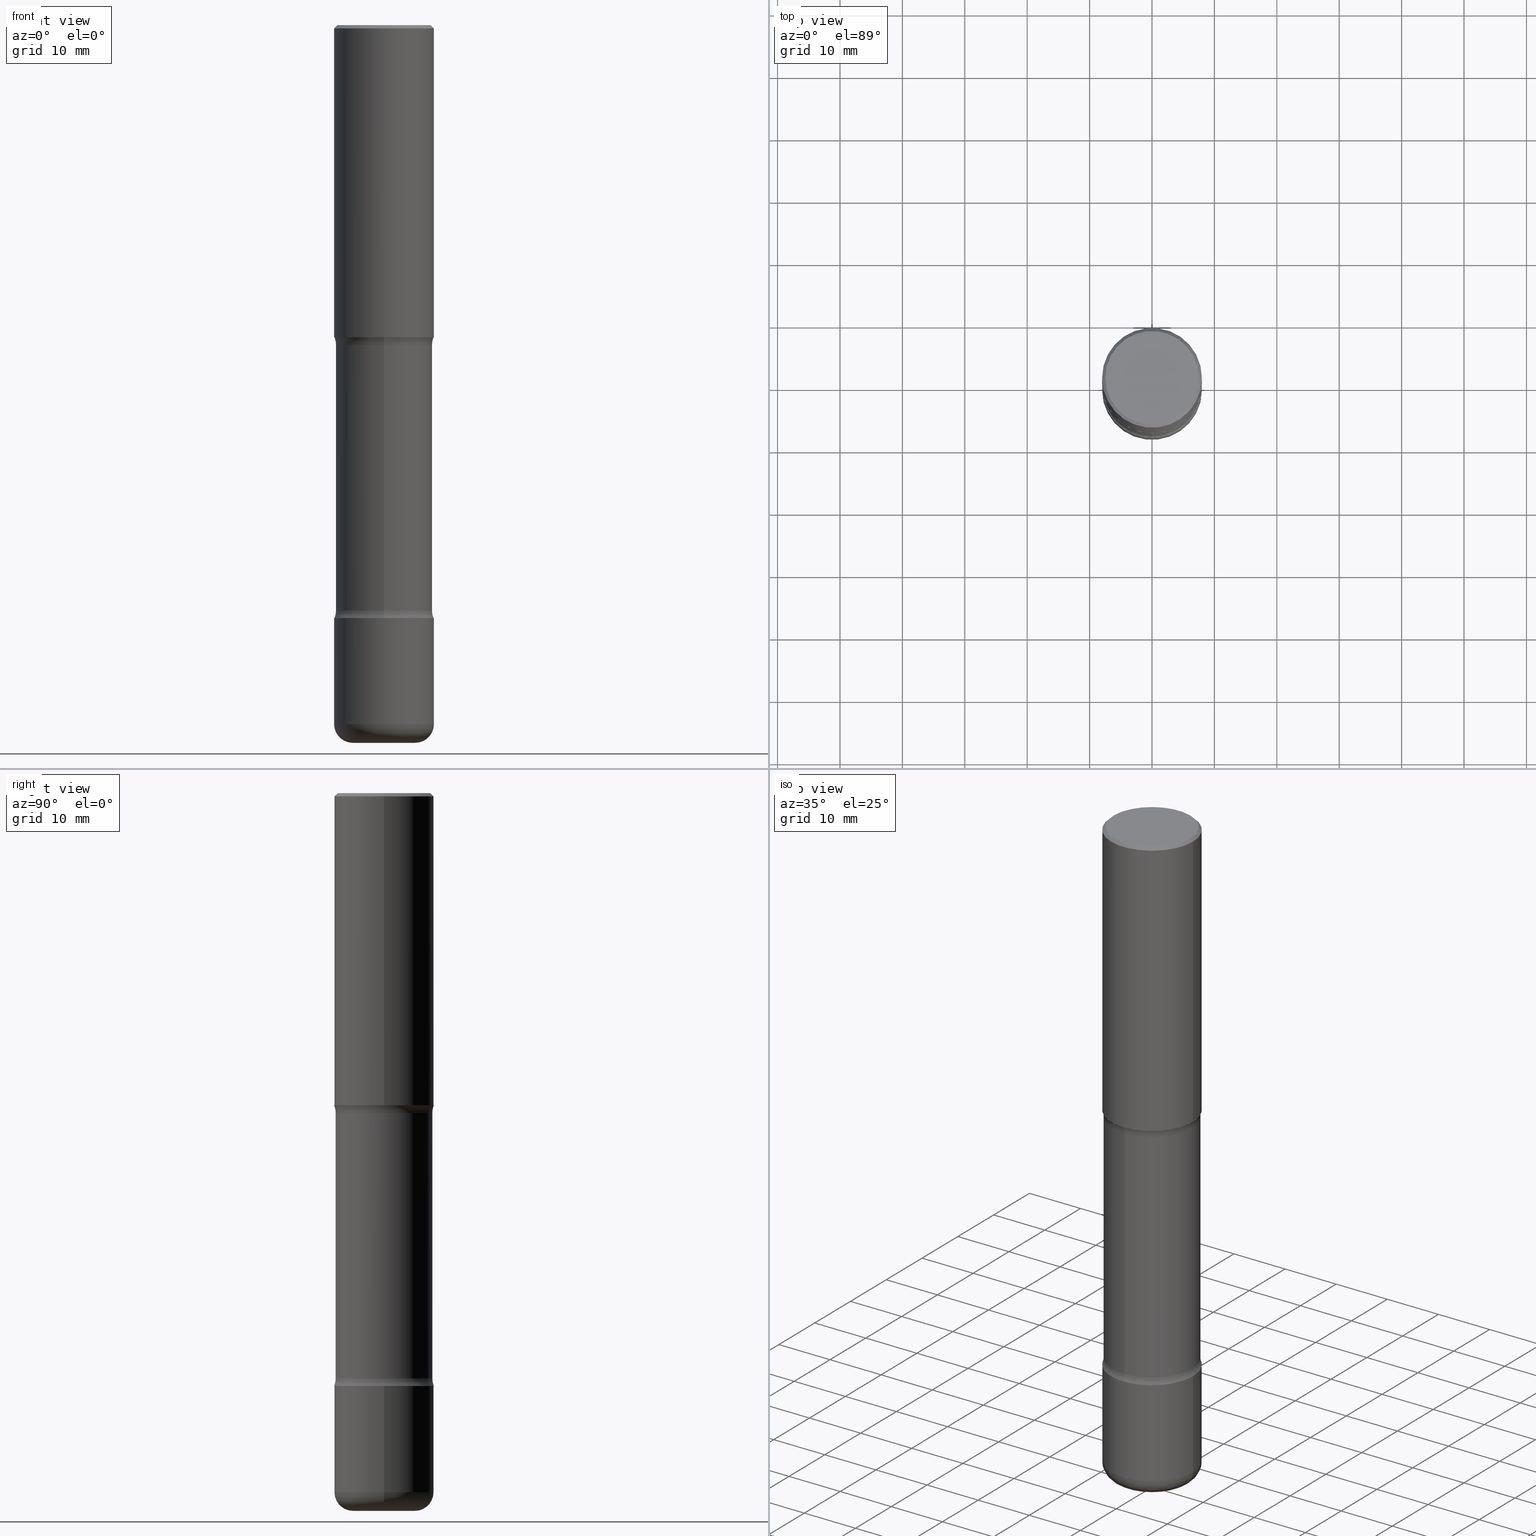
[diagram: canonical four-view strip — front | top / right | iso, engineering-drawing reading convention]
A machine part, canonical four-view strip (front | top / right | iso — engineering-drawing reading convention). The complete STEP part file that produces these views, byte-faithful:
ISO-10303-21;
HEADER;
FILE_DESCRIPTION (( 'STEP AP203' ),
    '1' );
FILE_NAME ('46935.STEP',
    '2024-03-02T06:00:58',
    ( '' ),
    ( '' ),
    'SwSTEP 2.0',
    'SolidWorks 2023',
    '' );
FILE_SCHEMA (( 'CONFIG_CONTROL_DESIGN' ));
ENDSEC;

DATA;
#1 = CARTESIAN_POINT ( 'NONE',  ( 0.3149500000000002298, -1.525812259887842581E-14, -3.740200000000000191 ) ) ;
#2 = AXIS2_PLACEMENT_3D ( 'NONE', #122, #382, #514 ) ;
#3 = CC_DESIGN_PERSON_AND_ORGANIZATION_ASSIGNMENT ( #269, #499, ( #534 ) ) ;
#4 = DIRECTION ( 'NONE',  ( -2.445468806185136597E-29, 3.491481338843145583E-15, 1.000000000000000000 ) ) ;
#5 = EDGE_CURVE ( 'NONE', #66, #101, #411, .T. ) ;
#6 = ORIENTED_EDGE ( 'NONE', *, *, #550, .T. ) ;
#7 = DIRECTION ( 'NONE',  ( 0.7071067811865459074, -7.319954787623249734E-15, -0.7071067811865491270 ) ) ;
#8 = EDGE_LOOP ( 'NONE', ( #62, #140, #338, #59 ) ) ;
#9 = DIRECTION ( 'NONE',  ( 1.000000000000000000, -6.982962677686267499E-15, 4.876053491004736589E-29 ) ) ;
#10 = CIRCLE ( 'NONE', #274, 0.3149500000000001743 ) ;
#11 = ORIENTED_EDGE ( 'NONE', *, *, #270, .T. ) ;
#12 = DIRECTION ( 'NONE',  ( 6.982962677686266711E-15, 1.000000000000000000, -3.582751467100674095E-15 ) ) ;
#13 = VERTEX_POINT ( 'NONE', #163 ) ;
#14 = ORIENTED_EDGE ( 'NONE', *, *, #455, .T. ) ;
#15 = LINE ( 'NONE', #444, #512 ) ;
#16 = DIRECTION ( 'NONE',  ( 6.982962677686265922E-15, 1.000000000000000000, -3.397830769241806549E-15 ) ) ;
#17 = ORIENTED_EDGE ( 'NONE', *, *, #273, .F. ) ;
#18 = PERSON_AND_ORGANIZATION_ROLE ( 'classification_officer' ) ;
#19 = VERTEX_POINT ( 'NONE', #82 ) ;
#20 = DIRECTION ( 'NONE',  ( -2.445468806185136597E-29, 3.491481338843145583E-15, 1.000000000000000000 ) ) ;
#21 = AXIS2_PLACEMENT_3D ( 'NONE', #548, #400, #118 ) ;
#22 = AXIS2_PLACEMENT_3D ( 'NONE', #166, #497, #372 ) ;
#23 = DATE_TIME_ROLE ( 'creation_date' ) ;
#24 = CARTESIAN_POINT ( 'NONE',  ( 0.1968500000000002470, -1.718262711284877024E-14, -4.527600000000000513 ) ) ;
#25 = PERSON_AND_ORGANIZATION ( #171, #403 ) ;
#26 = CARTESIAN_POINT ( 'NONE',  ( 4.698043529530127941E-29, -7.038901729675425288E-15, -1.968500000000000139 ) ) ;
#27 = APPLICATION_PROTOCOL_DEFINITION ( 'international standard', 'config_control_design', 1994, #30 ) ;
#28 = ORIENTED_EDGE ( 'NONE', *, *, #198, .T. ) ;
#29 = CARTESIAN_POINT ( 'NONE',  ( 1.107210456688382522E-28, -1.580803090974622705E-14, -4.527600000000000513 ) ) ;
#30 = APPLICATION_CONTEXT ( 'configuration controlled 3d designs of mechanical parts and assemblies' ) ;
#31 = MANIFOLD_SOLID_BREP ( 'Body-Move/Copy2[2]', #439 ) ;
#32 = EDGE_CURVE ( 'NONE', #134, #265, #332, .T. ) ;
#33 =( GEOMETRIC_REPRESENTATION_CONTEXT ( 3 ) GLOBAL_UNCERTAINTY_ASSIGNED_CONTEXT ( ( #459 ) ) GLOBAL_UNIT_ASSIGNED_CONTEXT ( ( #454, #457, #148 ) ) REPRESENTATION_CONTEXT ( 'NONE', 'WORKASPACE' ) );
#34 = DIRECTION ( 'NONE',  ( -2.445468806185136597E-29, 3.491481338843145583E-15, 1.000000000000000000 ) ) ;
#35 = DIRECTION ( 'NONE',  ( 2.438088387897960049E-29, -3.491481338843145188E-15, -1.000000000000000000 ) ) ;
#36 = ADVANCED_FACE ( 'NONE', ( #374 ), #460, .F. ) ;
#37 = DIRECTION ( 'NONE',  ( 2.510864649412157880E-29, -3.397830769241806549E-15, -1.000000000000000000 ) ) ;
#38 = CIRCLE ( 'NONE', #56, 0.3049999999999999378 ) ;
#39 = AXIS2_PLACEMENT_3D ( 'NONE', #116, #329, #42 ) ;
#40 = LINE ( 'NONE', #220, #173 ) ;
#41 = DIRECTION ( 'NONE',  ( 6.982962677686266711E-15, 1.000000000000000000, -3.582751467100673306E-15 ) ) ;
#42 = DIRECTION ( 'NONE',  ( -1.000000000000000000, 6.982962677686265922E-15, -4.876176775795935793E-29 ) ) ;
#43 = CARTESIAN_POINT ( 'NONE',  ( 4.820755151858623476E-29, -7.204961388123744804E-15, -2.017372256956273979 ) ) ;
#44 = COORDINATED_UNIVERSAL_TIME_OFFSET ( 5, 0, .BEHIND. ) ;
#45 = ORIENTED_EDGE ( 'NONE', *, *, #375, .F. ) ;
#46 = CARTESIAN_POINT ( 'NONE',  ( 4.838038961945526264E-29, -7.180209988345923531E-15, -2.017372256956273979 ) ) ;
#47 = EDGE_CURVE ( 'NONE', #221, #186, #192, .T. ) ;
#48 = EDGE_LOOP ( 'NONE', ( #28, #437, #440, #100 ) ) ;
#49 = AXIS2_PLACEMENT_3D ( 'NONE', #170, #472, #89 ) ;
#50 = AXIS2_PLACEMENT_3D ( 'NONE', #239, #491, #412 ) ;
#51 = ORIENTED_EDGE ( 'NONE', *, *, #325, .T. ) ;
#52 = CARTESIAN_POINT ( 'NONE',  ( 9.146542428893648262E-29, -1.305883850354113437E-14, -3.740200000000000191 ) ) ;
#53 = VERTEX_POINT ( 'NONE', #295 ) ;
#54 = DIRECTION ( 'NONE',  ( 1.000000000000000000, -6.860497997771530774E-15, 4.841945768327149582E-29 ) ) ;
#55 = CLOSED_SHELL ( 'NONE', ( #321, #537, #467, #288, #424, #532 ) ) ;
#56 = AXIS2_PLACEMENT_3D ( 'NONE', #87, #426, #423 ) ;
#57 = CIRCLE ( 'NONE', #335, 0.1181000000000000383 ) ;
#58 = PLANE ( 'NONE',  #513 ) ;
#59 = ORIENTED_EDGE ( 'NONE', *, *, #135, .T. ) ;
#60 = ORIENTED_EDGE ( 'NONE', *, *, #198, .F. ) ;
#61 = FACE_OUTER_BOUND ( 'NONE', #480, .T. ) ;
#62 = ORIENTED_EDGE ( 'NONE', *, *, #431, .F. ) ;
#63 = VERTEX_POINT ( 'NONE', #214 ) ;
#64 = EDGE_CURVE ( 'NONE', #53, #175, #322, .T. ) ;
#65 = PERSON_AND_ORGANIZATION_ROLE ( 'design_owner' ) ;
#66 = VERTEX_POINT ( 'NONE', #324 ) ;
#67 = CYLINDRICAL_SURFACE ( 'NONE', #234, 0.3149500000000000077 ) ;
#68 = CC_DESIGN_DATE_AND_TIME_ASSIGNMENT ( #363, #23, ( #302 ) ) ;
#69 = DATE_TIME_ROLE ( 'classification_date' ) ;
#70 = AXIS2_PLACEMENT_3D ( 'NONE', #26, #451, #158 ) ;
#71 = CC_DESIGN_APPROVAL ( #177, ( #302 ) ) ;
#72 = CARTESIAN_POINT ( 'NONE',  ( 4.890937612370289799E-31, -6.982962677686315028E-17, -0.02000000000000006981 ) ) ;
#73 = CARTESIAN_POINT ( 'NONE',  ( 0.3149500000000002853, -2.199284095337291843E-15, 1.535751875536931531E-29 ) ) ;
#74 = ADVANCED_FACE ( 'NONE', ( #378 ), #370, .T. ) ;
#75 = PERSON_AND_ORGANIZATION ( #171, #403 ) ;
#76 = CARTESIAN_POINT ( 'NONE',  ( 9.027026849019217051E-29, -1.288820193039115935E-14, -3.691327743043726795 ) ) ;
#77 = EDGE_CURVE ( 'NONE', #518, #13, #331, .T. ) ;
#78 = CIRCLE ( 'NONE', #258, 0.1968500000000002470 ) ;
#79 = CC_DESIGN_APPROVAL ( #154, ( #354 ) ) ;
#80 = EDGE_CURVE ( 'NONE', #396, #530, #296, .T. ) ;
#81 = ORIENTED_EDGE ( 'NONE', *, *, #458, .F. ) ;
#82 = CARTESIAN_POINT ( 'NONE',  ( 2.199284095337382168E-15, 0.3149499999999871291, -3.740200000000001079 ) ) ;
#83 = ADVANCED_FACE ( 'NONE', ( #252 ), #120, .F. ) ;
#84 = CARTESIAN_POINT ( 'NONE',  ( 3.002673951405142333E-15, 0.4299999999999927769, -2.017372256956275756 ) ) ;
#85 = CARTESIAN_POINT ( 'NONE',  ( -0.1968500000000002470, -1.378358007587744270E-14, -4.527600000000000513 ) ) ;
#86 = AXIS2_PLACEMENT_3D ( 'NONE', #52, #345, #219 ) ;
#87 = CARTESIAN_POINT ( 'NONE',  ( 9.023830806565153848E-29, -1.289277884509281722E-14, -3.691327743043726795 ) ) ;
#88 = DIRECTION ( 'NONE',  ( -1.000000000000000000, 6.982962677686265922E-15, -4.883557194083112901E-29 ) ) ;
#89 = DIRECTION ( 'NONE',  ( 1.000000000000000000, -6.982962677686263555E-15, 0.000000000000000000 ) ) ;
#90 = ADVANCED_FACE ( 'NONE', ( #247 ), #474, .F. ) ;
#91 = CARTESIAN_POINT ( 'NONE',  ( 0.000000000000000000, 0.000000000000000000, 0.000000000000000000 ) ) ;
#92 = DIRECTION ( 'NONE',  ( -2.445468806185136597E-29, 3.491481338843145583E-15, 1.000000000000000000 ) ) ;
#93 = AXIS2_PLACEMENT_3D ( 'NONE', #283, #37, #207 ) ;
#94 = FACE_OUTER_BOUND ( 'NONE', #123, .T. ) ;
#95 = ORIENTED_EDGE ( 'NONE', *, *, #135, .F. ) ;
#96 = CARTESIAN_POINT ( 'NONE',  ( 4.890937612370289799E-31, -6.982962677686315028E-17, -0.02000000000000006981 ) ) ;
#97 = EDGE_LOOP ( 'NONE', ( #356, #232 ) ) ;
#98 = ORIENTED_EDGE ( 'NONE', *, *, #77, .T. ) ;
#99 = CYLINDRICAL_SURFACE ( 'NONE', #125, 0.3149500000000002853 ) ;
#100 = ORIENTED_EDGE ( 'NONE', *, *, #446, .F. ) ;
#101 = VERTEX_POINT ( 'NONE', #124 ) ;
#102 = CARTESIAN_POINT ( 'NONE',  ( 4.813905344975441835E-29, -6.872981015512731707E-15, -1.968500000000000139 ) ) ;
#103 = AXIS2_PLACEMENT_3D ( 'NONE', #167, #129, #174 ) ;
#104 = ORIENTED_EDGE ( 'NONE', *, *, #517, .F. ) ;
#105 = AXIS2_PLACEMENT_3D ( 'NONE', #96, #475, #432 ) ;
#106 = AXIS2_PLACEMENT_3D ( 'NONE', #557, #316, #463 ) ;
#107 = ORIENTED_EDGE ( 'NONE', *, *, #336, .F. ) ;
#108 = FACE_OUTER_BOUND ( 'NONE', #536, .T. ) ;
#109 = CALENDAR_DATE ( 2024, 2, 3 ) ;
#110 = PLANE ( 'NONE',  #172 ) ;
#111 = CARTESIAN_POINT ( 'NONE',  ( 0.3149500000000001743, -9.072265110850023156E-15, -1.968500000000000139 ) ) ;
#112 = CIRCLE ( 'NONE', #86, 0.3149500000000002298 ) ;
#113 = ORIENTED_EDGE ( 'NONE', *, *, #446, .T. ) ;
#114 = FACE_OUTER_BOUND ( 'NONE', #189, .T. ) ;
#115 = SECURITY_CLASSIFICATION_LEVEL ( 'unclassified' ) ;
#116 = CARTESIAN_POINT ( 'NONE',  ( 9.146542428893648262E-29, -1.305883850354113437E-14, -3.740200000000000191 ) ) ;
#117 = CARTESIAN_POINT ( 'NONE',  ( -0.3149500000000002298, -1.198940838730855529E-14, -3.740200000000000191 ) ) ;
#118 = DIRECTION ( 'NONE',  ( 6.982962677686264344E-15, 1.000000000000000000, -3.469564049740290403E-15 ) ) ;
#119 = PLANE ( 'NONE',  #275 ) ;
#120 = TOROIDAL_SURFACE ( 'NONE', #93, 0.4299999999999999378, 0.1249999999999999861 ) ;
#121 = TOROIDAL_SURFACE ( 'NONE', #259, 0.1968500000000002470, 0.1181000000000000383 ) ;
#122 = CARTESIAN_POINT ( 'NONE',  ( -3.131554243005663153E-46, 4.471029511141347348E-32, 1.280553747030124924E-17 ) ) ;
#123 = EDGE_LOOP ( 'NONE', ( #305, #6, #399, #81 ) ) ;
#124 = CARTESIAN_POINT ( 'NONE',  ( -0.3149500000000002853, -1.315783261735241693E-14, -4.409500000000000419 ) ) ;
#125 = AXIS2_PLACEMENT_3D ( 'NONE', #188, #4, #128 ) ;
#126 = APPROVAL_PERSON_ORGANIZATION ( #236, #177, #359 ) ;
#127 = DIRECTION ( 'NONE',  ( 2.510864649412157600E-29, -3.397830769241806549E-15, -1.000000000000000000 ) ) ;
#128 = DIRECTION ( 'NONE',  ( 1.000000000000000000, -6.982962677686267499E-15, 4.876176775795936353E-29 ) ) ;
#129 = DIRECTION ( 'NONE',  ( -2.445468806185136597E-29, 3.491481338843145583E-15, 1.000000000000000000 ) ) ;
#130 = CC_DESIGN_PERSON_AND_ORGANIZATION_ASSIGNMENT ( #25, #65, ( #326 ) ) ;
#131 = ADVANCED_FACE ( 'NONE', ( #290 ), #164, .F. ) ;
#132 = TOROIDAL_SURFACE ( 'NONE', #419, 0.1968500000000002470, 0.1181000000000000383 ) ;
#133 = DIRECTION ( 'NONE',  ( 2.510864649412157880E-29, -3.397830769241806549E-15, -1.000000000000000000 ) ) ;
#134 = VERTEX_POINT ( 'NONE', #85 ) ;
#135 = EDGE_CURVE ( 'NONE', #63, #13, #38, .T. ) ;
#136 = CARTESIAN_POINT ( 'NONE',  ( -0.2949499999999998789, 2.094539655171994924E-15, 1.280553747028672311E-17 ) ) ;
#137 = VERTEX_POINT ( 'NONE', #421 ) ;
#138 = ORIENTED_EDGE ( 'NONE', *, *, #244, .T. ) ;
#139 = DIRECTION ( 'NONE',  ( -2.445468806185136597E-29, 3.491481338843145583E-15, 1.000000000000000000 ) ) ;
#140 = ORIENTED_EDGE ( 'NONE', *, *, #230, .F. ) ;
#141 = DIRECTION ( 'NONE',  ( 2.510864649412157600E-29, -3.397830769241806549E-15, -1.000000000000000000 ) ) ;
#142 = CIRCLE ( 'NONE', #241, 0.3049999999999999933 ) ;
#143 = EDGE_CURVE ( 'NONE', #518, #493, #142, .T. ) ;
#144 = VERTEX_POINT ( 'NONE', #1 ) ;
#145 = ORIENTED_EDGE ( 'NONE', *, *, #458, .T. ) ;
#146 = CARTESIAN_POINT ( 'NONE',  ( 0.2949499999999998789, -2.127023677808859286E-15, 1.280553747031588939E-17 ) ) ;
#147 = FACE_OUTER_BOUND ( 'NONE', #521, .T. ) ;
#148 =( NAMED_UNIT ( * ) SI_UNIT ( $, .STERADIAN. ) SOLID_ANGLE_UNIT ( ) );
#149 = DIRECTION ( 'NONE',  ( 1.000000000000000000, -6.982962677686266711E-15, 4.876176775795936353E-29 ) ) ;
#150 = COORDINATED_UNIVERSAL_TIME_OFFSET ( 5, 0, .BEHIND. ) ;
#151 = DIRECTION ( 'NONE',  ( -2.445468806185136597E-29, 3.491481338843145583E-15, 1.000000000000000000 ) ) ;
#152 = AXIS2_PLACEMENT_3D ( 'NONE', #348, #54, #340 ) ;
#153 = LOCAL_TIME ( 1, 0, 58.00000000000000000, #44 ) ;
#154 = APPROVAL ( #404, 'UNSPECIFIED' ) ;
#155 = DATE_AND_TIME ( #547, #249 ) ;
#156 = ORIENTED_EDGE ( 'NONE', *, *, #298, .F. ) ;
#157 = EDGE_CURVE ( 'NONE', #101, #66, #342, .T. ) ;
#158 = DIRECTION ( 'NONE',  ( 6.982962677686265922E-15, 1.000000000000000000, -3.469564049740289220E-15 ) ) ;
#159 = CALENDAR_DATE ( 2024, 2, 3 ) ;
#160 = DIRECTION ( 'NONE',  ( -2.445468806185136597E-29, 3.491481338843145583E-15, 1.000000000000000000 ) ) ;
#161 = CYLINDRICAL_SURFACE ( 'NONE', #523, 0.3149500000000000077 ) ;
#162 = ADVANCED_FACE ( 'NONE', ( #108 ), #110, .F. ) ;
#163 = CARTESIAN_POINT ( 'NONE',  ( -2.126582866859139470E-15, -0.3050000000000128719, -3.691327743043725906 ) ) ;
#164 = PLANE ( 'NONE',  #505 ) ;
#165 = EDGE_LOOP ( 'NONE', ( #492, #98, #95, #516 ) ) ;
#166 = CARTESIAN_POINT ( 'NONE',  ( 4.820755151858623476E-29, -7.204961388123744804E-15, -2.017372256956273979 ) ) ;
#167 = CARTESIAN_POINT ( 'NONE',  ( 1.107210456688382522E-28, -1.580803090974622705E-14, -4.527600000000000513 ) ) ;
#168 = ADVANCED_FACE ( 'NONE', ( #147 ), #476, .T. ) ;
#169 = CARTESIAN_POINT ( 'NONE',  ( 9.146542428893648262E-29, -1.305883850354113437E-14, -3.740200000000000191 ) ) ;
#170 = CARTESIAN_POINT ( 'NONE',  ( 1.078329470087336022E-28, -1.539568696362885450E-14, -4.409500000000000419 ) ) ;
#171 = PERSON ( 'UNSPECIFIED', 'UNSPECIFIED', 'UNSPECIFIED', ('UNSPECIFIED'), ('UNSPECIFIED'), ('UNSPECIFIED') ) ;
#172 = AXIS2_PLACEMENT_3D ( 'NONE', #414, #368, #277 ) ;
#173 = VECTOR ( 'NONE', #183, 39.37007874015748143 ) ;
#174 = DIRECTION ( 'NONE',  ( 1.000000000000000000, -6.982962677686269866E-15, 0.000000000000000000 ) ) ;
#175 = VERTEX_POINT ( 'NONE', #205 ) ;
#176 = CARTESIAN_POINT ( 'NONE',  ( -0.3149499999999998967, 2.129454468560425784E-15, -0.02000000000000006981 ) ) ;
#177 = APPROVAL ( #204, 'UNSPECIFIED' ) ;
#178 = ADVANCED_FACE ( 'NONE', ( #553 ), #67, .T. ) ;
#179 = ORIENTED_EDGE ( 'NONE', *, *, #362, .T. ) ;
#180 = TOROIDAL_SURFACE ( 'NONE', #466, 0.4300000000000000488, 0.1249999999999999861 ) ;
#181 = CIRCLE ( 'NONE', #524, 0.1249999999999999584 ) ;
#182 = DIRECTION ( 'NONE',  ( -2.445468806185136597E-29, 3.491481338843145583E-15, 1.000000000000000000 ) ) ;
#183 = DIRECTION ( 'NONE',  ( -2.445468806185136877E-29, 3.491481338843145188E-15, 1.000000000000000000 ) ) ;
#184 = EDGE_LOOP ( 'NONE', ( #401, #398, #14, #527 ) ) ;
#185 = CARTESIAN_POINT ( 'NONE',  ( -2.950014139041668531E-15, -0.4300000000000129829, -3.691327743043725018 ) ) ;
#186 = VERTEX_POINT ( 'NONE', #272 ) ;
#187 = ORIENTED_EDGE ( 'NONE', *, *, #32, .T. ) ;
#188 = CARTESIAN_POINT ( 'NONE',  ( 0.000000000000000000, 0.000000000000000000, 0.000000000000000000 ) ) ;
#189 = EDGE_LOOP ( 'NONE', ( #251, #212 ) ) ;
#190 = COORDINATED_UNIVERSAL_TIME_OFFSET ( 5, 0, .BEHIND. ) ;
#191 = ORIENTED_EDGE ( 'NONE', *, *, #157, .F. ) ;
#192 = CIRCLE ( 'NONE', #280, 0.3149500000000001743 ) ;
#193 = VECTOR ( 'NONE', #141, 39.37007874015748143 ) ;
#194 = DIRECTION ( 'NONE',  ( 1.000000000000000000, -6.982962677686266711E-15, 4.876176775795936353E-29 ) ) ;
#195 = MECHANICAL_CONTEXT ( 'NONE', #479, 'mechanical' ) ;
#196 = DIRECTION ( 'NONE',  ( -2.445468806185136877E-29, 3.491481338843145188E-15, 1.000000000000000000 ) ) ;
#197 = DIRECTION ( 'NONE',  ( -6.982962677686265922E-15, -1.000000000000000000, 3.397830769241806549E-15 ) ) ;
#198 = EDGE_CURVE ( 'NONE', #265, #134, #78, .T. ) ;
#199 =( LENGTH_UNIT ( ) NAMED_UNIT ( * ) SI_UNIT ( $, .METRE. ) );
#200 = PLANE ( 'NONE',  #39 ) ;
#201 = CARTESIAN_POINT ( 'NONE',  ( 0.000000000000000000, 0.000000000000000000, 0.000000000000000000 ) ) ;
#202 = AXIS2_PLACEMENT_3D ( 'NONE', #526, #267, #256 ) ;
#203 = AXIS2_PLACEMENT_3D ( 'NONE', #227, #133, #12 ) ;
#204 = APPROVAL_STATUS ( 'not_yet_approved' ) ;
#205 = CARTESIAN_POINT ( 'NONE',  ( -2.160713844398098792E-15, -0.3149500000000073907, -1.968499999999999028 ) ) ;
#206 = DIRECTION ( 'NONE',  ( 6.982962677686265922E-15, 1.000000000000000000, -3.469564049740289220E-15 ) ) ;
#207 = DIRECTION ( 'NONE',  ( 6.982962677686265922E-15, 1.000000000000000000, -3.397830769241806549E-15 ) ) ;
#208 = TOROIDAL_SURFACE ( 'NONE', #468, 0.4300000000000000488, 0.1249999999999999861 ) ;
#209 = ORIENTED_EDGE ( 'NONE', *, *, #528, .T. ) ;
#210 = ADVANCED_FACE ( 'NONE', ( #407 ), #180, .F. ) ;
#211 = CARTESIAN_POINT ( 'NONE',  ( 4.813905344975441835E-29, -6.872981015512731707E-15, -1.968500000000000139 ) ) ;
#212 = ORIENTED_EDGE ( 'NONE', *, *, #336, .T. ) ;
#213 = ORIENTED_EDGE ( 'NONE', *, *, #375, .T. ) ;
#214 = CARTESIAN_POINT ( 'NONE',  ( 2.129803616694401198E-15, 0.3049999999999870592, -3.691327743043728127 ) ) ;
#215 = MANIFOLD_SOLID_BREP ( 'Body-Move/Copy2[1]', #55 ) ;
#216 = CONICAL_SURFACE ( 'NONE', #105, 0.3149499999999998967, 0.7853981633974460586 ) ;
#217 = AXIS2_PLACEMENT_3D ( 'NONE', #279, #88, #309 ) ;
#218 = DIRECTION ( 'NONE',  ( 6.860497997771532351E-15, 1.000000000000000000, 0.000000000000000000 ) ) ;
#219 = DIRECTION ( 'NONE',  ( 1.000000000000000000, -6.982962677686264344E-15, 0.000000000000000000 ) ) ;
#220 = CARTESIAN_POINT ( 'NONE',  ( -0.3149500000000000077, 2.237854346276435590E-15, -1.549218606675782676E-29 ) ) ;
#221 = VERTEX_POINT ( 'NONE', #111 ) ;
#222 = DIRECTION ( 'NONE',  ( -2.510864649412157319E-29, 3.397830769241806549E-15, 1.000000000000000000 ) ) ;
#223 = CIRCLE ( 'NONE', #306, 0.2949499999999998789 ) ;
#224 = DIRECTION ( 'NONE',  ( -2.445468806185136597E-29, 3.491481338843145583E-15, 1.000000000000000000 ) ) ;
#225 = ORIENTED_EDGE ( 'NONE', *, *, #504, .F. ) ;
#226 = ORIENTED_EDGE ( 'NONE', *, *, #386, .T. ) ;
#227 = CARTESIAN_POINT ( 'NONE',  ( 1.112359725384078225E-28, -1.573429045124212958E-14, -4.527600000000000513 ) ) ;
#228 = DIRECTION ( 'NONE',  ( 2.510864649412157880E-29, -3.397830769241806549E-15, -1.000000000000000000 ) ) ;
#229 = ORIENTED_EDGE ( 'NONE', *, *, #304, .F. ) ;
#230 = EDGE_CURVE ( 'NONE', #19, #137, #248, .T. ) ;
#231 = APPROVAL_STATUS ( 'not_yet_approved' ) ;
#232 = ORIENTED_EDGE ( 'NONE', *, *, #273, .T. ) ;
#233 = PERSON_AND_ORGANIZATION ( #171, #403 ) ;
#234 = AXIS2_PLACEMENT_3D ( 'NONE', #201, #20, #194 ) ;
#235 = LINE ( 'NONE', #405, #487 ) ;
#236 = PERSON_AND_ORGANIZATION ( #171, #403 ) ;
#237 = DIRECTION ( 'NONE',  ( -1.000000000000000000, 6.982962677686265922E-15, -4.876176775795935793E-29 ) ) ;
#238 = DIRECTION ( 'NONE',  ( 2.445468806185136597E-29, -3.491481338843145583E-15, -1.000000000000000000 ) ) ;
#239 = CARTESIAN_POINT ( 'NONE',  ( 0.000000000000000000, 0.000000000000000000, 0.000000000000000000 ) ) ;
#240 = FACE_OUTER_BOUND ( 'NONE', #450, .T. ) ;
#241 = AXIS2_PLACEMENT_3D ( 'NONE', #43, #380, #41 ) ;
#242 = CC_DESIGN_SECURITY_CLASSIFICATION ( #354, ( #534 ) ) ;
#243 = ADVANCED_BREP_SHAPE_REPRESENTATION ( '46935', ( #215, #31, #395, #50 ), #33 ) ;
#244 = EDGE_CURVE ( 'NONE', #175, #53, #364, .T. ) ;
#245 = CARTESIAN_POINT ( 'NONE',  ( 2.129803616694359388E-15, 0.3049999999999927769, -2.017372256956274867 ) ) ;
#246 = CARTESIAN_POINT ( 'NONE',  ( -2.092451889320205392E-15, -0.3050000000000157030, -4.527599999999998737 ) ) ;
#247 = FACE_OUTER_BOUND ( 'NONE', #533, .T. ) ;
#248 = CIRCLE ( 'NONE', #21, 0.3149500000000002298 ) ;
#249 = LOCAL_TIME ( 1, 0, 58.00000000000000000, #318 ) ;
#250 = APPROVAL_DATE_TIME ( #470, #154 ) ;
#251 = ORIENTED_EDGE ( 'NONE', *, *, #416, .T. ) ;
#252 = FACE_OUTER_BOUND ( 'NONE', #482, .T. ) ;
#253 = CARTESIAN_POINT ( 'NONE',  ( 1.078329470087336022E-28, -1.539568696362885450E-14, -4.409500000000000419 ) ) ;
#254 = ADVANCED_FACE ( 'NONE', ( #544 ), #161, .T. ) ;
#255 = ORIENTED_EDGE ( 'NONE', *, *, #47, .T. ) ;
#256 = DIRECTION ( 'NONE',  ( 1.000000000000000000, -6.982962677686265922E-15, 0.000000000000000000 ) ) ;
#257 = DIRECTION ( 'NONE',  ( 1.000000000000000000, -6.982962677686263555E-15, 0.000000000000000000 ) ) ;
#258 = AXIS2_PLACEMENT_3D ( 'NONE', #29, #34, #311 ) ;
#259 = AXIS2_PLACEMENT_3D ( 'NONE', #551, #160, #319 ) ;
#260 = DIRECTION ( 'NONE',  ( 1.000000000000000000, -6.982962677686265922E-15, 0.000000000000000000 ) ) ;
#261 = ORIENTED_EDGE ( 'NONE', *, *, #64, .T. ) ;
#262 = CYLINDRICAL_SURFACE ( 'NONE', #420, 0.3149500000000002853 ) ;
#263 = ORIENTED_EDGE ( 'NONE', *, *, #517, .T. ) ;
#264 = CIRCLE ( 'NONE', #371, 0.3149500000000002298 ) ;
#265 = VERTEX_POINT ( 'NONE', #24 ) ;
#266 = APPROVAL_PERSON_ORGANIZATION ( #271, #389, #496 ) ;
#267 = DIRECTION ( 'NONE',  ( -2.445468806185136597E-29, 3.491481338843145583E-15, 1.000000000000000000 ) ) ;
#268 = ORIENTED_EDGE ( 'NONE', *, *, #80, .T. ) ;
#269 = PERSON_AND_ORGANIZATION ( #171, #403 ) ;
#270 = EDGE_CURVE ( 'NONE', #221, #387, #235, .T. ) ;
#271 = PERSON_AND_ORGANIZATION ( #171, #403 ) ;
#272 = CARTESIAN_POINT ( 'NONE',  ( -0.3149500000000001743, -1.233550974868359743E-15, -1.968500000000000139 ) ) ;
#273 = EDGE_CURVE ( 'NONE', #137, #19, #264, .T. ) ;
#274 = AXIS2_PLACEMENT_3D ( 'NONE', #102, #182, #434 ) ;
#275 = AXIS2_PLACEMENT_3D ( 'NONE', #369, #35, #237 ) ;
#276 = CARTESIAN_POINT ( 'NONE',  ( 1.078329470087336022E-28, -1.539568696362885450E-14, -4.409500000000000419 ) ) ;
#277 = DIRECTION ( 'NONE',  ( 6.982962677686265922E-15, 1.000000000000000000, -3.397830769241806549E-15 ) ) ;
#278 = VECTOR ( 'NONE', #127, 39.37007874015748143 ) ;
#279 = CARTESIAN_POINT ( 'NONE',  ( 3.002673951405185326E-15, 0.4299999999999871703, -3.691327743043728571 ) ) ;
#280 = AXIS2_PLACEMENT_3D ( 'NONE', #560, #461, #327 ) ;
#281 = DESIGN_CONTEXT ( 'detailed design', #30, 'design' ) ;
#282 = CIRCLE ( 'NONE', #217, 0.1249999999999999584 ) ;
#283 = CARTESIAN_POINT ( 'NONE',  ( 4.838038961945526264E-29, -7.180209988345923531E-15, -2.017372256956273979 ) ) ;
#284 = APPROVAL_ROLE ( '' ) ;
#285 = ORIENTED_EDGE ( 'NONE', *, *, #64, .F. ) ;
#286 = DIRECTION ( 'NONE',  ( 2.510864649412157880E-29, -3.397830769241806549E-15, -1.000000000000000000 ) ) ;
#287 = ORIENTED_EDGE ( 'NONE', *, *, #435, .T. ) ;
#288 = ADVANCED_FACE ( 'NONE', ( #503 ), #132, .T. ) ;
#289 = CLOSED_SHELL ( 'NONE', ( #74, #210, #36, #83, #162, #559, #519, #427 ) ) ;
#290 = FACE_OUTER_BOUND ( 'NONE', #379, .T. ) ;
#291 = AXIS2_PLACEMENT_3D ( 'NONE', #360, #303, #260 ) ;
#292 = VECTOR ( 'NONE', #495, 39.37007874015748143 ) ;
#293 = CARTESIAN_POINT ( 'NONE',  ( 2.059624841783563274E-15, 0.2949499999999998789, -1.023409652156634744E-15 ) ) ;
#294 = CARTESIAN_POINT ( 'NONE',  ( 0.3149499999999998967, -2.230543471175006266E-15, -0.02000000000000006981 ) ) ;
#295 = CARTESIAN_POINT ( 'NONE',  ( 2.199284095337339175E-15, 0.3149499999999932909, -1.968500000000001249 ) ) ;
#296 = CIRCLE ( 'NONE', #2, 0.2949499999999998789 ) ;
#297 = DIRECTION ( 'NONE',  ( -2.445468806185136597E-29, 3.491481338843145583E-15, 1.000000000000000000 ) ) ;
#298 = EDGE_CURVE ( 'NONE', #387, #443, #313, .T. ) ;
#299 = DIRECTION ( 'NONE',  ( 1.000000000000000000, -6.982962677686264344E-15, 0.000000000000000000 ) ) ;
#300 = ORIENTED_EDGE ( 'NONE', *, *, #270, .F. ) ;
#301 = ORIENTED_EDGE ( 'NONE', *, *, #325, .F. ) ;
#302 = PRODUCT_DEFINITION ( 'UNKNOWN', '', #534, #281 ) ;
#303 = DIRECTION ( 'NONE',  ( -2.445468806185136597E-29, 3.491481338843145583E-15, 1.000000000000000000 ) ) ;
#304 = EDGE_CURVE ( 'NONE', #530, #387, #473, .T. ) ;
#305 = ORIENTED_EDGE ( 'NONE', *, *, #5, .T. ) ;
#306 = AXIS2_PLACEMENT_3D ( 'NONE', #529, #297, #9 ) ;
#307 = APPROVAL_PERSON_ORGANIZATION ( #233, #154, #284 ) ;
#308 = LINE ( 'NONE', #73, #442 ) ;
#309 = DIRECTION ( 'NONE',  ( -6.982962677686267499E-15, -1.000000000000000000, 0.000000000000000000 ) ) ;
#310 = LENGTH_MEASURE_WITH_UNIT ( LENGTH_MEASURE( 0.02539999999999999897 ), #199 );
#311 = DIRECTION ( 'NONE',  ( 1.000000000000000000, -6.982962677686269866E-15, 0.000000000000000000 ) ) ;
#312 = DIRECTION ( 'NONE',  ( -1.000000000000000000, 6.982962677686265922E-15, 0.000000000000000000 ) ) ;
#313 = CIRCLE ( 'NONE', #291, 0.3149499999999998967 ) ;
#314 = LOCAL_TIME ( 1, 0, 58.00000000000000000, #190 ) ;
#315 = PERSON_AND_ORGANIZATION ( #171, #403 ) ;
#316 = DIRECTION ( 'NONE',  ( 7.105427357601001859E-15, 1.000000000000000000, -3.491481338843145583E-15 ) ) ;
#317 = DIRECTION ( 'NONE',  ( 2.510864649412157880E-29, -3.397830769241806549E-15, -1.000000000000000000 ) ) ;
#318 = COORDINATED_UNIVERSAL_TIME_OFFSET ( 5, 0, .BEHIND. ) ;
#319 = DIRECTION ( 'NONE',  ( 1.000000000000000000, -6.982962677686263555E-15, 4.883557194083111780E-29 ) ) ;
#320 = CARTESIAN_POINT ( 'NONE',  ( 9.146542428893648262E-29, -1.305883850354113437E-14, -3.740200000000000191 ) ) ;
#321 = ADVANCED_FACE ( 'NONE', ( #94 ), #99, .T. ) ;
#322 = CIRCLE ( 'NONE', #402, 0.3149500000000003408 ) ;
#323 = CIRCLE ( 'NONE', #546, 0.1249999999999999584 ) ;
#324 = CARTESIAN_POINT ( 'NONE',  ( 0.3149500000000002853, -1.759497105896614279E-14, -4.409500000000000419 ) ) ;
#325 = EDGE_CURVE ( 'NONE', #186, #221, #10, .T. ) ;
#326 = PRODUCT ( '46935', '46935', '', ( #195 ) ) ;
#327 = DIRECTION ( 'NONE',  ( 1.000000000000000000, -6.982962677686269866E-15, 0.000000000000000000 ) ) ;
#328 = CC_DESIGN_DATE_AND_TIME_ASSIGNMENT ( #535, #69, ( #354 ) ) ;
#329 = DIRECTION ( 'NONE',  ( 2.438088387897960049E-29, -3.491481338843145188E-15, -1.000000000000000000 ) ) ;
#330 = DIMENSIONAL_EXPONENTS ( 1.000000000000000000, 0.000000000000000000, 0.000000000000000000, 0.000000000000000000, 0.000000000000000000, 0.000000000000000000, 0.000000000000000000 ) ;
#331 = LINE ( 'NONE', #246, #278 ) ;
#332 = CIRCLE ( 'NONE', #103, 0.1968500000000002470 ) ;
#333 = CARTESIAN_POINT ( 'NONE',  ( 4.698043529530127941E-29, -7.038901729675425288E-15, -1.968500000000000139 ) ) ;
#334 = CIRCLE ( 'NONE', #413, 0.3149500000000002298 ) ;
#335 = AXIS2_PLACEMENT_3D ( 'NONE', #522, #478, #490 ) ;
#336 = EDGE_CURVE ( 'NONE', #486, #144, #112, .T. ) ;
#337 = DIRECTION ( 'NONE',  ( 6.982962677686266711E-15, 1.000000000000000000, -3.582751467100674095E-15 ) ) ;
#338 = ORIENTED_EDGE ( 'NONE', *, *, #541, .T. ) ;
#339 = DIRECTION ( 'NONE',  ( -0.7071067811865459074, 2.468850131082240100E-15, -0.7071067811865491270 ) ) ;
#340 = DIRECTION ( 'NONE',  ( 6.860497997771532351E-15, 1.000000000000000000, 0.000000000000000000 ) ) ;
#341 = ORIENTED_EDGE ( 'NONE', *, *, #550, .F. ) ;
#342 = CIRCLE ( 'NONE', #49, 0.3149500000000002853 ) ;
#343 = LOCAL_TIME ( 1, 0, 58.00000000000000000, #150 ) ;
#344 = CARTESIAN_POINT ( 'NONE',  ( 9.027026849019217051E-29, -1.288820193039115935E-14, -3.691327743043726795 ) ) ;
#345 = DIRECTION ( 'NONE',  ( -2.445468806185136597E-29, 3.491481338843145583E-15, 1.000000000000000000 ) ) ;
#346 = ORIENTED_EDGE ( 'NONE', *, *, #541, .F. ) ;
#347 = EDGE_LOOP ( 'NONE', ( #17, #433, #287, #346 ) ) ;
#348 = CARTESIAN_POINT ( 'NONE',  ( -2.950014139041709158E-15, -0.4300000000000070988, -2.017372256956272647 ) ) ;
#349 = ORIENTED_EDGE ( 'NONE', *, *, #362, .F. ) ;
#350 = LINE ( 'NONE', #531, #193 ) ;
#351 = EDGE_CURVE ( 'NONE', #518, #175, #391, .T. ) ;
#352 = EDGE_LOOP ( 'NONE', ( #436, #489, #138, #104 ) ) ;
#353 = AXIS2_PLACEMENT_3D ( 'NONE', #46, #507, #508 ) ;
#354 = SECURITY_CLASSIFICATION ( '', '', #115 ) ;
#355 = CALENDAR_DATE ( 2024, 2, 3 ) ;
#356 = ORIENTED_EDGE ( 'NONE', *, *, #230, .T. ) ;
#357 = CC_DESIGN_APPROVAL ( #389, ( #534 ) ) ;
#358 = CC_DESIGN_PERSON_AND_ORGANIZATION_ASSIGNMENT ( #447, #18, ( #354 ) ) ;
#359 = APPROVAL_ROLE ( '' ) ;
#360 = CARTESIAN_POINT ( 'NONE',  ( 4.890937612370289799E-31, -6.982962677686315028E-17, -0.02000000000000006981 ) ) ;
#361 = DATE_AND_TIME ( #159, #373 ) ;
#362 = EDGE_CURVE ( 'NONE', #530, #396, #223, .T. ) ;
#363 = DATE_AND_TIME ( #109, #343 ) ;
#364 = CIRCLE ( 'NONE', #70, 0.3149500000000003408 ) ;
#365 = CIRCLE ( 'NONE', #106, 0.1181000000000000383 ) ;
#366 = DIRECTION ( 'NONE',  ( -2.445468806185136877E-29, 3.491481338843145188E-15, 1.000000000000000000 ) ) ;
#367 = CARTESIAN_POINT ( 'NONE',  ( -2.126582866859183647E-15, -0.3050000000000072098, -2.017372256956272647 ) ) ;
#368 = DIRECTION ( 'NONE',  ( 2.510864649412157319E-29, -3.397830769241806549E-15, -1.000000000000000000 ) ) ;
#369 = CARTESIAN_POINT ( 'NONE',  ( 2.296867071415663705E-29, -2.837467045875746041E-14, -4.527600000000000513 ) ) ;
#370 = CYLINDRICAL_SURFACE ( 'NONE', #452, 0.3049999999999999378 ) ;
#371 = AXIS2_PLACEMENT_3D ( 'NONE', #320, #317, #501 ) ;
#372 = DIRECTION ( 'NONE',  ( 6.982962677686266711E-15, 1.000000000000000000, -3.582751467100673306E-15 ) ) ;
#373 = LOCAL_TIME ( 1, 0, 58.00000000000000000, #549 ) ;
#374 = FACE_OUTER_BOUND ( 'NONE', #352, .T. ) ;
#375 = EDGE_CURVE ( 'NONE', #443, #387, #441, .T. ) ;
#376 = ORIENTED_EDGE ( 'NONE', *, *, #485, .F. ) ;
#377 = DIRECTION ( 'NONE',  ( -6.982962677686267499E-15, -1.000000000000000000, 0.000000000000000000 ) ) ;
#378 = FACE_OUTER_BOUND ( 'NONE', #165, .T. ) ;
#379 = EDGE_LOOP ( 'NONE', ( #462, #301 ) ) ;
#380 = DIRECTION ( 'NONE',  ( 2.510864649412157880E-29, -3.397830769241806549E-15, -1.000000000000000000 ) ) ;
#381 = EDGE_LOOP ( 'NONE', ( #225, #187, #113, #191 ) ) ;
#382 = DIRECTION ( 'NONE',  ( -2.445468806185136597E-29, 3.491481338843145583E-15, 1.000000000000000000 ) ) ;
#383 = VECTOR ( 'NONE', #7, 39.37007874015748143 ) ;
#384 = DIRECTION ( 'NONE',  ( 2.510864649412157880E-29, -3.397830769241806549E-15, -1.000000000000000000 ) ) ;
#385 = DIRECTION ( 'NONE',  ( 6.982962677686266711E-15, 1.000000000000000000, -3.582751467100674095E-15 ) ) ;
#386 = EDGE_CURVE ( 'NONE', #396, #443, #15, .T. ) ;
#387 = VERTEX_POINT ( 'NONE', #294 ) ;
#388 = CARTESIAN_POINT ( 'NONE',  ( 9.146542428893648262E-29, -1.305883850354113437E-14, -3.740200000000000191 ) ) ;
#389 = APPROVAL ( #231, 'UNSPECIFIED' ) ;
#390 = ORIENTED_EDGE ( 'NONE', *, *, #351, .F. ) ;
#391 = CIRCLE ( 'NONE', #152, 0.1249999999999999584 ) ;
#392 = CIRCLE ( 'NONE', #453, 0.3049999999999999378 ) ;
#393 = DIRECTION ( 'NONE',  ( 1.000000000000000000, -6.982962677686267499E-15, 4.876176775795936353E-29 ) ) ;
#394 = ORIENTED_EDGE ( 'NONE', *, *, #298, .T. ) ;
#395 = MANIFOLD_SOLID_BREP ( 'Body-Move/Copy2[4]', #289 ) ;
#396 = VERTEX_POINT ( 'NONE', #136 ) ;
#397 = CARTESIAN_POINT ( 'NONE',  ( 9.023830806565153848E-29, -1.289277884509281722E-14, -3.691327743043726795 ) ) ;
#398 = ORIENTED_EDGE ( 'NONE', *, *, #143, .T. ) ;
#399 = ORIENTED_EDGE ( 'NONE', *, *, #416, .F. ) ;
#400 = DIRECTION ( 'NONE',  ( 2.510864649412157880E-29, -3.397830769241806549E-15, -1.000000000000000000 ) ) ;
#401 = ORIENTED_EDGE ( 'NONE', *, *, #77, .F. ) ;
#402 = AXIS2_PLACEMENT_3D ( 'NONE', #333, #286, #206 ) ;
#403 = ORGANIZATION ( 'UNSPECIFIED', 'UNSPECIFIED', '' ) ;
#404 = APPROVAL_STATUS ( 'not_yet_approved' ) ;
#405 = CARTESIAN_POINT ( 'NONE',  ( 0.3149500000000000077, -2.199284095337289871E-15, 1.535751875536930130E-29 ) ) ;
#406 = LINE ( 'NONE', #542, #292 ) ;
#407 = FACE_OUTER_BOUND ( 'NONE', #347, .T. ) ;
#408 = PERSON_AND_ORGANIZATION_ROLE ( 'creator' ) ;
#409 = DIRECTION ( 'NONE',  ( 2.510864649412157880E-29, -3.397830769241806549E-15, -1.000000000000000000 ) ) ;
#410 = ADVANCED_FACE ( 'NONE', ( #61 ), #216, .T. ) ;
#411 = CIRCLE ( 'NONE', #511, 0.3149500000000002853 ) ;
#412 = DIRECTION ( 'NONE',  ( 1.000000000000000000, 0.000000000000000000, 0.000000000000000000 ) ) ;
#413 = AXIS2_PLACEMENT_3D ( 'NONE', #388, #139, #299 ) ;
#414 = CARTESIAN_POINT ( 'NONE',  ( 4.813905344975441835E-29, -6.872981015512731707E-15, -1.968500000000000139 ) ) ;
#415 = PRODUCT_RELATED_PRODUCT_CATEGORY ( 'detail', '', ( #326 ) ) ;
#416 = EDGE_CURVE ( 'NONE', #144, #486, #334, .T. ) ;
#417 = FACE_OUTER_BOUND ( 'NONE', #48, .T. ) ;
#418 = CARTESIAN_POINT ( 'NONE',  ( 1.112359725384078225E-28, -1.573429045124212958E-14, -4.527600000000000513 ) ) ;
#419 = AXIS2_PLACEMENT_3D ( 'NONE', #276, #456, #498 ) ;
#420 = AXIS2_PLACEMENT_3D ( 'NONE', #91, #224, #393 ) ;
#421 = CARTESIAN_POINT ( 'NONE',  ( -2.160713844398053432E-15, -0.3149500000000131639, -3.740199999999998859 ) ) ;
#422 = EDGE_LOOP ( 'NONE', ( #255, #209, #156, #300 ) ) ;
#423 = DIRECTION ( 'NONE',  ( 6.982962677686266711E-15, 1.000000000000000000, -3.582751467100674095E-15 ) ) ;
#424 = ADVANCED_FACE ( 'NONE', ( #481 ), #262, .T. ) ;
#425 = ORIENTED_EDGE ( 'NONE', *, *, #304, .T. ) ;
#426 = DIRECTION ( 'NONE',  ( 2.510864649412157880E-29, -3.397830769241806549E-15, -1.000000000000000000 ) ) ;
#427 = ADVANCED_FACE ( 'NONE', ( #429 ), #438, .T. ) ;
#428 = ORIENTED_EDGE ( 'NONE', *, *, #157, .T. ) ;
#429 = FACE_OUTER_BOUND ( 'NONE', #184, .T. ) ;
#430 = AXIS2_PLACEMENT_3D ( 'NONE', #72, #238, #312 ) ;
#431 = EDGE_CURVE ( 'NONE', #137, #13, #181, .T. ) ;
#432 = DIRECTION ( 'NONE',  ( -1.000000000000000000, 6.982962677686265922E-15, 0.000000000000000000 ) ) ;
#433 = ORIENTED_EDGE ( 'NONE', *, *, #431, .T. ) ;
#434 = DIRECTION ( 'NONE',  ( 1.000000000000000000, -6.982962677686269866E-15, 0.000000000000000000 ) ) ;
#435 = EDGE_CURVE ( 'NONE', #13, #63, #392, .T. ) ;
#436 = ORIENTED_EDGE ( 'NONE', *, *, #143, .F. ) ;
#437 = ORIENTED_EDGE ( 'NONE', *, *, #504, .T. ) ;
#438 = CYLINDRICAL_SURFACE ( 'NONE', #203, 0.3049999999999999378 ) ;
#439 = CLOSED_SHELL ( 'NONE', ( #254, #168, #410, #90, #131, #178 ) ) ;
#440 = ORIENTED_EDGE ( 'NONE', *, *, #5, .F. ) ;
#441 = CIRCLE ( 'NONE', #202, 0.3149499999999998967 ) ;
#442 = VECTOR ( 'NONE', #366, 39.37007874015748143 ) ;
#443 = VERTEX_POINT ( 'NONE', #176 ) ;
#444 = CARTESIAN_POINT ( 'NONE',  ( -0.3149499999999998967, 2.129454468560425784E-15, -0.02000000000000006981 ) ) ;
#445 = ORIENTED_EDGE ( 'NONE', *, *, #32, .F. ) ;
#446 = EDGE_CURVE ( 'NONE', #265, #66, #57, .T. ) ;
#447 = PERSON_AND_ORGANIZATION ( #171, #403 ) ;
#448 = EDGE_LOOP ( 'NONE', ( #341, #428, #145, #107 ) ) ;
#449 = CARTESIAN_POINT ( 'NONE',  ( 0.000000000000000000, 0.000000000000000000, 0.000000000000000000 ) ) ;
#450 = EDGE_LOOP ( 'NONE', ( #60, #445 ) ) ;
#451 = DIRECTION ( 'NONE',  ( 2.510864649412157880E-29, -3.397830769241806549E-15, -1.000000000000000000 ) ) ;
#452 = AXIS2_PLACEMENT_3D ( 'NONE', #418, #556, #337 ) ;
#453 = AXIS2_PLACEMENT_3D ( 'NONE', #397, #384, #385 ) ;
#454 =( CONVERSION_BASED_UNIT ( 'INCH', #310 ) LENGTH_UNIT ( ) NAMED_UNIT ( #330 ) );
#455 = EDGE_CURVE ( 'NONE', #493, #63, #350, .T. ) ;
#456 = DIRECTION ( 'NONE',  ( -2.445468806185136597E-29, 3.491481338843145583E-15, 1.000000000000000000 ) ) ;
#457 =( NAMED_UNIT ( * ) PLANE_ANGLE_UNIT ( ) SI_UNIT ( $, .RADIAN. ) );
#458 = EDGE_CURVE ( 'NONE', #66, #144, #308, .T. ) ;
#459 = UNCERTAINTY_MEASURE_WITH_UNIT (LENGTH_MEASURE( 1.000000000000000082E-05 ), #454, 'distance_accuracy_value', 'NONE');
#460 = TOROIDAL_SURFACE ( 'NONE', #353, 0.4299999999999999378, 0.1249999999999999861 ) ;
#461 = DIRECTION ( 'NONE',  ( -2.445468806185136597E-29, 3.491481338843145583E-15, 1.000000000000000000 ) ) ;
#462 = ORIENTED_EDGE ( 'NONE', *, *, #47, .F. ) ;
#463 = DIRECTION ( 'NONE',  ( -1.000000000000000000, 7.105427357601001859E-15, 0.000000000000000000 ) ) ;
#464 = DIRECTION ( 'NONE',  ( 1.000000000000000000, -6.982962677686265922E-15, 4.876176775795935793E-29 ) ) ;
#465 = FACE_OUTER_BOUND ( 'NONE', #97, .T. ) ;
#466 = AXIS2_PLACEMENT_3D ( 'NONE', #76, #409, #539 ) ;
#467 = ADVANCED_FACE ( 'NONE', ( #240 ), #119, .T. ) ;
#468 = AXIS2_PLACEMENT_3D ( 'NONE', #344, #228, #16 ) ;
#469 = DIRECTION ( 'NONE',  ( -2.438088387897960049E-29, 3.491481338843145188E-15, 1.000000000000000000 ) ) ;
#470 = DATE_AND_TIME ( #509, #153 ) ;
#471 = CC_DESIGN_PERSON_AND_ORGANIZATION_ASSIGNMENT ( #75, #408, ( #302 ) ) ;
#472 = DIRECTION ( 'NONE',  ( -2.445468806185136597E-29, 3.491481338843145583E-15, 1.000000000000000000 ) ) ;
#473 = LINE ( 'NONE', #515, #383 ) ;
#474 = PLANE ( 'NONE',  #545 ) ;
#475 = DIRECTION ( 'NONE',  ( 2.445468806185136597E-29, -3.491481338843145583E-15, -1.000000000000000000 ) ) ;
#476 = CONICAL_SURFACE ( 'NONE', #430, 0.3149499999999998967, 0.7853981633974460586 ) ;
#477 = ORIENTED_EDGE ( 'NONE', *, *, #244, .F. ) ;
#478 = DIRECTION ( 'NONE',  ( -6.982962677686266711E-15, -1.000000000000000000, 3.491481338843145583E-15 ) ) ;
#479 = APPLICATION_CONTEXT ( 'configuration controlled 3d designs of mechanical parts and assemblies' ) ;
#480 = EDGE_LOOP ( 'NONE', ( #229, #483, #226, #213 ) ) ;
#481 = FACE_OUTER_BOUND ( 'NONE', #448, .T. ) ;
#482 = EDGE_LOOP ( 'NONE', ( #390, #376, #263, #261 ) ) ;
#483 = ORIENTED_EDGE ( 'NONE', *, *, #80, .F. ) ;
#484 = DIRECTION ( 'NONE',  ( 1.000000000000000000, -6.860497997771530774E-15, 4.841945768327149582E-29 ) ) ;
#485 = EDGE_CURVE ( 'NONE', #493, #518, #488, .T. ) ;
#486 = VERTEX_POINT ( 'NONE', #117 ) ;
#487 = VECTOR ( 'NONE', #196, 39.37007874015748143 ) ;
#488 = CIRCLE ( 'NONE', #22, 0.3049999999999999933 ) ;
#489 = ORIENTED_EDGE ( 'NONE', *, *, #351, .T. ) ;
#490 = DIRECTION ( 'NONE',  ( 1.000000000000000000, -6.982962677686254089E-15, 0.000000000000000000 ) ) ;
#491 = DIRECTION ( 'NONE',  ( 0.000000000000000000, 0.000000000000000000, 1.000000000000000000 ) ) ;
#492 = ORIENTED_EDGE ( 'NONE', *, *, #485, .T. ) ;
#493 = VERTEX_POINT ( 'NONE', #245 ) ;
#494 = APPLICATION_PROTOCOL_DEFINITION ( 'international standard', 'config_control_design', 1994, #479 ) ;
#495 = DIRECTION ( 'NONE',  ( -2.445468806185136877E-29, 3.491481338843145188E-15, 1.000000000000000000 ) ) ;
#496 = APPROVAL_ROLE ( '' ) ;
#497 = DIRECTION ( 'NONE',  ( 2.510864649412157880E-29, -3.397830769241806549E-15, -1.000000000000000000 ) ) ;
#498 = DIRECTION ( 'NONE',  ( 1.000000000000000000, -6.982962677686263555E-15, 4.883557194083111780E-29 ) ) ;
#499 = PERSON_AND_ORGANIZATION_ROLE ( 'design_supplier' ) ;
#500 = DIRECTION ( 'NONE',  ( -1.000000000000000000, 6.982962677686265922E-15, -4.883557194083112901E-29 ) ) ;
#501 = DIRECTION ( 'NONE',  ( 6.982962677686264344E-15, 1.000000000000000000, -3.469564049740290403E-15 ) ) ;
#502 = APPROVAL_DATE_TIME ( #155, #389 ) ;
#503 = FACE_OUTER_BOUND ( 'NONE', #381, .T. ) ;
#504 = EDGE_CURVE ( 'NONE', #134, #101, #365, .T. ) ;
#505 = AXIS2_PLACEMENT_3D ( 'NONE', #211, #469, #464 ) ;
#506 = PRODUCT_DEFINITION_SHAPE ( 'NONE', 'NONE',  #302 ) ;
#507 = DIRECTION ( 'NONE',  ( 2.510864649412157880E-29, -3.397830769241806549E-15, -1.000000000000000000 ) ) ;
#508 = DIRECTION ( 'NONE',  ( 6.982962677686265922E-15, 1.000000000000000000, -3.397830769241806549E-15 ) ) ;
#509 = CALENDAR_DATE ( 2024, 2, 3 ) ;
#510 = DIRECTION ( 'NONE',  ( -1.000000000000000000, 6.982962677686265922E-15, -4.876176775795935793E-29 ) ) ;
#511 = AXIS2_PLACEMENT_3D ( 'NONE', #253, #92, #257 ) ;
#512 = VECTOR ( 'NONE', #339, 39.37007874015748143 ) ;
#513 = AXIS2_PLACEMENT_3D ( 'NONE', #169, #222, #197 ) ;
#514 = DIRECTION ( 'NONE',  ( 1.000000000000000000, -6.982962677686267499E-15, 4.876053491004736589E-29 ) ) ;
#515 = CARTESIAN_POINT ( 'NONE',  ( 0.3149499999999998967, -2.230543471175006266E-15, -0.02000000000000006981 ) ) ;
#516 = ORIENTED_EDGE ( 'NONE', *, *, #455, .F. ) ;
#517 = EDGE_CURVE ( 'NONE', #493, #53, #323, .T. ) ;
#518 = VERTEX_POINT ( 'NONE', #367 ) ;
#519 = ADVANCED_FACE ( 'NONE', ( #552 ), #208, .F. ) ;
#520 = EDGE_LOOP ( 'NONE', ( #555, #51, #11, #45 ) ) ;
#521 = EDGE_LOOP ( 'NONE', ( #349, #425, #394, #525 ) ) ;
#522 = CARTESIAN_POINT ( 'NONE',  ( 0.1968500000000002470, -1.677028316673139768E-14, -4.409500000000000419 ) ) ;
#523 = AXIS2_PLACEMENT_3D ( 'NONE', #449, #151, #149 ) ;
#524 = AXIS2_PLACEMENT_3D ( 'NONE', #185, #484, #218 ) ;
#525 = ORIENTED_EDGE ( 'NONE', *, *, #386, .F. ) ;
#526 = CARTESIAN_POINT ( 'NONE',  ( 4.890937612370289799E-31, -6.982962677686315028E-17, -0.02000000000000006981 ) ) ;
#527 = ORIENTED_EDGE ( 'NONE', *, *, #435, .F. ) ;
#528 = EDGE_CURVE ( 'NONE', #186, #443, #40, .T. ) ;
#529 = CARTESIAN_POINT ( 'NONE',  ( -3.131554243005663153E-46, 4.471029511141347348E-32, 1.280553747030124924E-17 ) ) ;
#530 = VERTEX_POINT ( 'NONE', #146 ) ;
#531 = CARTESIAN_POINT ( 'NONE',  ( 2.129803616694422103E-15, 0.3049999999999842282, -4.527600000000001401 ) ) ;
#532 = ADVANCED_FACE ( 'NONE', ( #114 ), #200, .F. ) ;
#533 = EDGE_LOOP ( 'NONE', ( #268, #179 ) ) ;
#534 = PRODUCT_DEFINITION_FORMATION_WITH_SPECIFIED_SOURCE ( 'ANY', '', #326, .NOT_KNOWN. ) ;
#535 = DATE_AND_TIME ( #355, #314 ) ;
#536 = EDGE_LOOP ( 'NONE', ( #285, #477 ) ) ;
#537 = ADVANCED_FACE ( 'NONE', ( #417 ), #121, .T. ) ;
#538 = PERSON_AND_ORGANIZATION_ROLE ( 'creator' ) ;
#539 = DIRECTION ( 'NONE',  ( 6.982962677686265922E-15, 1.000000000000000000, -3.397830769241806549E-15 ) ) ;
#540 = CC_DESIGN_PERSON_AND_ORGANIZATION_ASSIGNMENT ( #315, #538, ( #534 ) ) ;
#541 = EDGE_CURVE ( 'NONE', #19, #63, #282, .T. ) ;
#542 = CARTESIAN_POINT ( 'NONE',  ( -0.3149500000000002853, 2.237854346276437562E-15, -1.549218606675783797E-29 ) ) ;
#543 = APPROVAL_DATE_TIME ( #361, #177 ) ;
#544 = FACE_OUTER_BOUND ( 'NONE', #422, .T. ) ;
#545 = AXIS2_PLACEMENT_3D ( 'NONE', #293, #558, #510 ) ;
#546 = AXIS2_PLACEMENT_3D ( 'NONE', #84, #500, #377 ) ;
#547 = CALENDAR_DATE ( 2024, 2, 3 ) ;
#548 = CARTESIAN_POINT ( 'NONE',  ( 9.146542428893648262E-29, -1.305883850354113437E-14, -3.740200000000000191 ) ) ;
#549 = COORDINATED_UNIVERSAL_TIME_OFFSET ( 5, 0, .BEHIND. ) ;
#550 = EDGE_CURVE ( 'NONE', #101, #486, #406, .T. ) ;
#551 = CARTESIAN_POINT ( 'NONE',  ( 1.078329470087336022E-28, -1.539568696362885450E-14, -4.409500000000000419 ) ) ;
#552 = FACE_OUTER_BOUND ( 'NONE', #8, .T. ) ;
#553 = FACE_OUTER_BOUND ( 'NONE', #520, .T. ) ;
#554 = SHAPE_DEFINITION_REPRESENTATION ( #506, #243 ) ;
#555 = ORIENTED_EDGE ( 'NONE', *, *, #528, .F. ) ;
#556 = DIRECTION ( 'NONE',  ( 2.510864649412157880E-29, -3.397830769241806549E-15, -1.000000000000000000 ) ) ;
#557 = CARTESIAN_POINT ( 'NONE',  ( -0.1968500000000002470, -1.399698358828509592E-14, -4.409500000000000419 ) ) ;
#558 = DIRECTION ( 'NONE',  ( 2.438088387897960049E-29, -3.491481338843145188E-15, -1.000000000000000000 ) ) ;
#559 = ADVANCED_FACE ( 'NONE', ( #465 ), #58, .F. ) ;
#560 = CARTESIAN_POINT ( 'NONE',  ( 4.813905344975441835E-29, -6.872981015512731707E-15, -1.968500000000000139 ) ) ;
ENDSEC;
END-ISO-10303-21;
